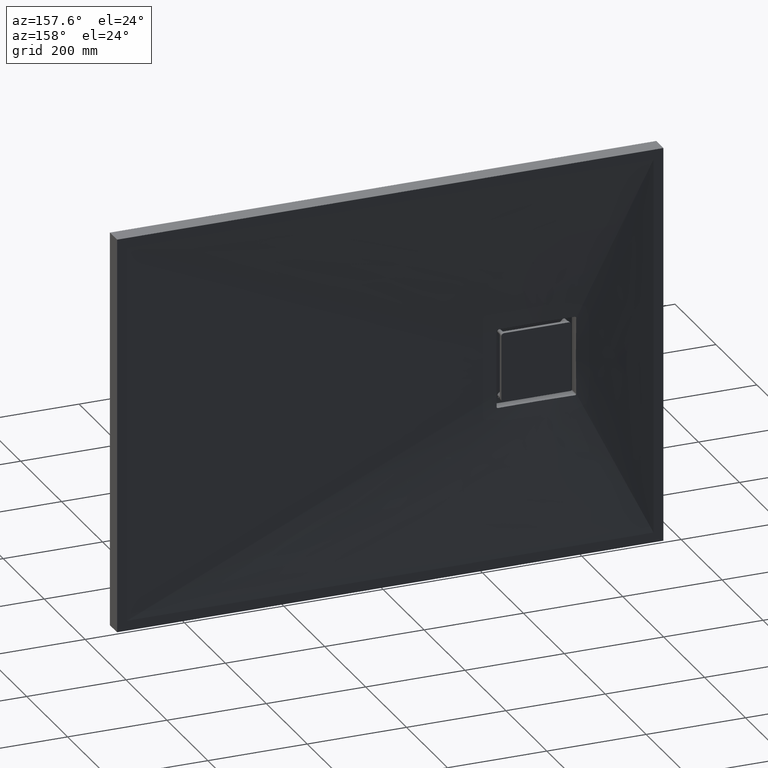
[diagram: clean part render]
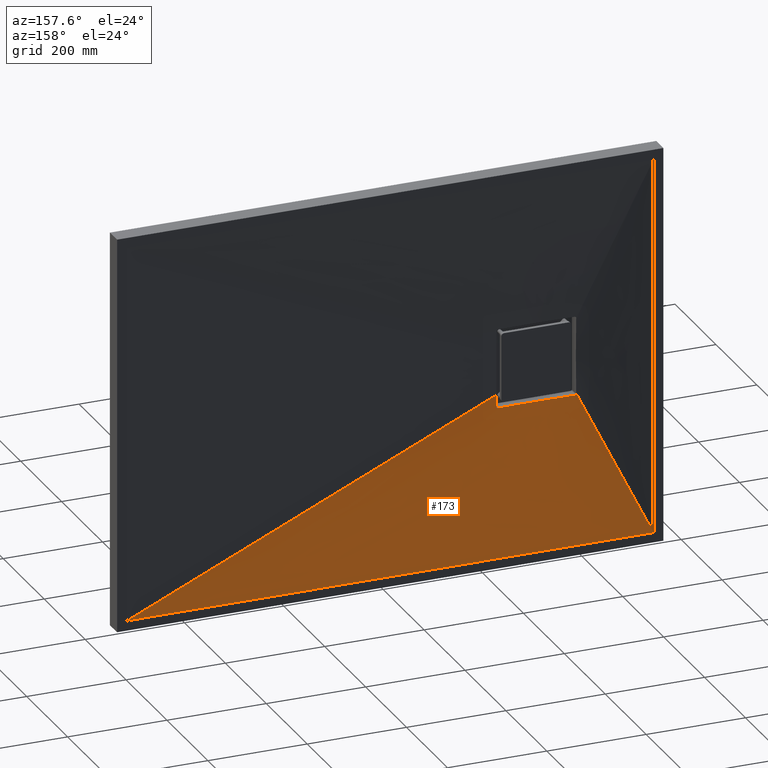
[diagram: same view with one face highlighted and labeled with its STEP entity id]
A machine part, auxiliary view. The second image highlights one B-rep face of the part: STEP entity #173.
In plain terms, the highlighted face is a freeform B-spline surface patch.
Its self-contained STEP definition (entity closure, byte-faithful):
#7 = B_SPLINE_CURVE_WITH_KNOTS ( 'NONE', 3,
 ( #1236, #1111, #2135, #2126, #1371, #1577, #452, #1130, #1120, #2096, #2105, #2115, #3221, #3239, #413, #94 ),
 .UNSPECIFIED., .F., .F.,
 ( 4, 2, 2, 2, 2, 2, 2, 4 ),
 ( 0.0000000000000000000, 0.01937721941836496900, 0.03875443883672993800, 0.05813165825509489900, 0.07750887767345987500, 0.09688609709182484400, 0.1162633165101898000, 0.1550177553469196400 ),
 .UNSPECIFIED. ) ;
#12 = VECTOR ( 'NONE', #677, 1000.000000000000300 ) ;
#33 = LINE ( 'NONE', #701, #12 ) ;
#58 = CARTESIAN_POINT ( 'NONE',  ( -361.7052981467360800, 20.00000000000000400, -50.99577307566186600 ) ) ;
#79 = CARTESIAN_POINT ( 'NONE',  ( -507.9166666666669100, 35.00000000000000000, -379.9999999999998900 ) ) ;
#87 = CARTESIAN_POINT ( 'NONE',  ( -222.5000000000003100, 20.75112594090486300, -79.99999999999988600 ) ) ;
#94 = CARTESIAN_POINT ( 'NONE',  ( -222.5000000000003100, 20.75112594090486300, -79.99999999999988600 ) ) ;
#173 = ADVANCED_FACE ( 'NONE', ( #1300 ), #2274, .F. ) ;
#176 = CARTESIAN_POINT ( 'NONE',  ( -530.0000000000003400, 35.00000000000000000, -379.9999999999998900 ) ) ;
#215 = CARTESIAN_POINT ( 'NONE',  ( -485.8333333333334300, 35.00000000000000000, -379.9999999999998900 ) ) ;
#224 = ORIENTED_EDGE ( 'NONE', *, *, #2667, .T. ) ;
#243 = CARTESIAN_POINT ( 'NONE',  ( -379.8724588645875400, 21.40936809743771400, -78.30514288652749100 ) ) ;
#244 = CARTESIAN_POINT ( 'NONE',  ( -220.6174807482476300, 20.75403846884901400, -79.15308589838852500 ) ) ;
#262 = CARTESIAN_POINT ( 'NONE',  ( -441.6666666666666300, 35.00000000000000000, -379.9999999999998900 ) ) ;
#290 = CARTESIAN_POINT ( 'NONE',  ( -344.0301745403897900, 20.00000000000000400, -66.86535820804444100 ) ) ;
#339 = CARTESIAN_POINT ( 'NONE',  ( -220.8333333333327500, 35.00000000000000000, -379.9999999999998900 ) ) ;
#340 = CARTESIAN_POINT ( 'NONE',  ( -341.3532267441534600, 20.00000000000000400, -68.55818577849230200 ) ) ;
#345 = CARTESIAN_POINT ( 'NONE',  ( -287.0833333333329200, 35.00000000000000000, -379.9999999999998900 ) ) ;
#349 = CARTESIAN_POINT ( 'NONE',  ( 529.9999999999996600, 35.00000000000000000, -379.9999999999998900 ) ) ;
#357 = VECTOR ( 'NONE', #1519, 1000.000000000000000 ) ;
#359 = CARTESIAN_POINT ( 'NONE',  ( -332.7727712270692000, 20.00000000000000000, -73.05368764796081400 ) ) ;
#366 = CARTESIAN_POINT ( 'NONE',  ( -335.7245187442330800, 20.00000000000000400, -71.65244559597792300 ) ) ;
#389 = ORIENTED_EDGE ( 'NONE', *, *, #1623, .T. ) ;
#393 = LINE ( 'NONE', #2049, #357 ) ;
#413 = CARTESIAN_POINT ( 'NONE',  ( -235.4175237471420100, 20.59207229256688300, -79.99999999999984400 ) ) ;
#429 = CARTESIAN_POINT ( 'NONE',  ( -326.6430799332999300, 20.00000000000000000, -75.50524554317682700 ) ) ;
#432 = CARTESIAN_POINT ( 'NONE',  ( -176.6666666666659800, 35.00000000000000000, -379.9999999999998900 ) ) ;
#452 = CARTESIAN_POINT ( 'NONE',  ( -325.8410786932366800, 20.23737435204045800, -79.99999999999982900 ) ) ;
#546 = CARTESIAN_POINT ( 'NONE',  ( 507.9166666666664600, 35.00000000000000000, -379.9999999999998900 ) ) ;
#564 = CARTESIAN_POINT ( 'NONE',  ( -220.0000000000003100, 20.72325411655747400, -77.49999999999988600 ) ) ;
#571 = CARTESIAN_POINT ( 'NONE',  ( -380.0000000000002300, 21.37647287985030100, -77.29797643291834700 ) ) ;
#592 = CARTESIAN_POINT ( 'NONE',  ( -220.0000000000002800, 20.53760863952169300, -69.38250910483107200 ) ) ;
#614 = CARTESIAN_POINT ( 'NONE',  ( -220.0000000000002600, 20.39814914347487800, -61.26420382882009400 ) ) ;
#621 = CARTESIAN_POINT ( 'NONE',  ( -220.0000000000002800, 20.29381605708499200, -53.14527918142273000 ) ) ;
#672 = CARTESIAN_POINT ( 'NONE',  ( -380.0000000000003400, 21.38356546132506300, -77.49999999999985800 ) ) ;
#677 = DIRECTION ( 'NONE',  ( -0.9165784987461060900, -0.01797249600090817700, 0.3994506790879588400 ) ) ;
#682 = CARTESIAN_POINT ( 'NONE',  ( -242.9166666666661200, 35.00000000000000000, -379.9999999999998900 ) ) ;
#688 = CARTESIAN_POINT ( 'NONE',  ( -220.0000000000003100, 20.72325411655747400, -77.49999999999988600 ) ) ;
#701 = CARTESIAN_POINT ( 'NONE',  ( 147.5078441943495000, 27.50000000000000400, -213.3075109317978800 ) ) ;
#864 = CARTESIAN_POINT ( 'NONE',  ( -220.0000000000003700, 20.73080285528976000, -77.83007439183414500 ) ) ;
#888 = CARTESIAN_POINT ( 'NONE',  ( -380.0000000000003400, 21.36939752737829000, -77.09595226020708500 ) ) ;
#909 = CARTESIAN_POINT ( 'NONE',  ( -380.0000000000003400, 21.36233967929659300, -76.89392747670572700 ) ) ;
#979 = CARTESIAN_POINT ( 'NONE',  ( -375.4166666666665200, 35.00000000000000000, -379.9999999999998900 ) ) ;
#992 = CARTESIAN_POINT ( 'NONE',  ( -234.9843116113006800, 20.00000000000000000, -46.61502186359582100 ) ) ;
#1011 = DIRECTION ( 'NONE',  ( -1.000000000000000000, 0.0000000000000000000, 0.0000000000000000000 ) ) ;
#1060 = CARTESIAN_POINT ( 'NONE',  ( -220.0000000000003100, 20.72325411655747400, -77.49999999999988600 ) ) ;
#1111 = CARTESIAN_POINT ( 'NONE',  ( -371.0421898611198200, 21.29375652970349700, -79.99999999999984400 ) ) ;
#1120 = CARTESIAN_POINT ( 'NONE',  ( -306.4662511269842800, 20.00002788254466100, -79.99999999999982900 ) ) ;
#1128 = ORIENTED_EDGE ( 'NONE', *, *, #2343, .T. ) ;
#1130 = CARTESIAN_POINT ( 'NONE',  ( -312.9250322534639400, 20.04296218426946700, -79.99999999999981500 ) ) ;
#1231 = CARTESIAN_POINT ( 'NONE',  ( -323.4652228249630600, 20.00000000000000000, -76.55537357724708200 ) ) ;
#1236 = CARTESIAN_POINT ( 'NONE',  ( -377.5000000000003400, 21.42276207670963500, -79.99999999999984400 ) ) ;
#1277 = CARTESIAN_POINT ( 'NONE',  ( -242.0775971034681500, 19.99999999999999600, -55.25493583069091800 ) ) ;
#1300 = FACE_OUTER_BOUND ( 'NONE', #1755, .T. ) ;
#1320 = CARTESIAN_POINT ( 'NONE',  ( -221.3919392102884600, 20.75865566493861500, -79.74700406166638800 ) ) ;
#1326 = CARTESIAN_POINT ( 'NONE',  ( -222.1726152103209400, 20.75476268818216900, -79.98381189185489900 ) ) ;
#1364 = CARTESIAN_POINT ( 'NONE',  ( 529.9999999999996600, 35.00000000000000000, -379.9999999999998900 ) ) ;
#1371 = CARTESIAN_POINT ( 'NONE',  ( -345.2128326984927800, 20.69506707752152200, -79.99999999999985800 ) ) ;
#1381 = CARTESIAN_POINT ( 'NONE',  ( -357.9224028965322800, 20.00000000000000000, -55.25493583069087600 ) ) ;
#1392 = VERTEX_POINT ( 'NONE', #3154 ) ;
#1396 = CARTESIAN_POINT ( 'NONE',  ( -221.6945750532305200, 20.75794929630256600, -79.87236519574094000 ) ) ;
#1443 = B_SPLINE_CURVE_WITH_KNOTS ( 'NONE', 3,
 ( #1902, #2782, #1326, #2917, #1396, #1320, #1631, #3061, #1488, #244, #1820, #1740, #2609, #1472, #864, #1060 ),
 .UNSPECIFIED., .F., .F.,
 ( 4, 2, 2, 2, 2, 2, 2, 4 ),
 ( 2.775557561562891000E-017, 0.0004882150574229086700, 0.0009764301148457895900, 0.001464645172268670300, 0.001952860229691551400, 0.002441075287114432500, 0.002929290344537312900, 0.003905720459383107200 ),
 .UNSPECIFIED. ) ;
#1459 = CARTESIAN_POINT ( 'NONE',  ( -379.0276258256327500, 21.43459663696277700, -79.48578795233294200 ) ) ;
#1472 = CARTESIAN_POINT ( 'NONE',  ( -220.0663139919171600, 20.73755099561454800, -78.15808791839684500 ) ) ;
#1488 = CARTESIAN_POINT ( 'NONE',  ( -220.8480807638878500, 20.75666228370318600, -79.38354308632220600 ) ) ;
#1503 = CARTESIAN_POINT ( 'NONE',  ( -380.0000000000003400, 21.38356546132506300, -77.49999999999985800 ) ) ;
#1508 = CARTESIAN_POINT ( 'NONE',  ( -377.5000000000003400, 21.42276207670963500, -79.99999999999984400 ) ) ;
#1519 = DIRECTION ( 'NONE',  ( -0.4431758915503725700, 0.04029254847525917000, -0.8955286928322852000 ) ) ;
#1577 = CARTESIAN_POINT ( 'NONE',  ( -332.2983993930724900, 20.38496388157739900, -79.99999999999984400 ) ) ;
#1621 = CARTESIAN_POINT ( 'NONE',  ( -244.1287047213201000, 19.99999999999999300, -57.33485389314287800 ) ) ;
#1623 = EDGE_CURVE ( 'NONE', #1392, #2489, #3291, .T. ) ;
#1626 = CARTESIAN_POINT ( 'NONE',  ( 441.6666666666667400, 35.00000000000000000, -379.9999999999998900 ) ) ;
#1631 = CARTESIAN_POINT ( 'NONE',  ( -221.2483966503827400, 20.75858016801720000, -79.67028879053611900 ) ) ;
#1634 = EDGE_CURVE ( 'NONE', #2527, #1788, #393, .T. ) ;
#1667 = CARTESIAN_POINT ( 'NONE',  ( -220.0000000000002800, 20.29381605708499200, -53.14527918142273000 ) ) ;
#1724 = VERTEX_POINT ( 'NONE', #688 ) ;
#1731 = VERTEX_POINT ( 'NONE', #87 ) ;
#1740 = CARTESIAN_POINT ( 'NONE',  ( -220.3312044035882000, 20.74818118605575300, -78.75431811487023000 ) ) ;
#1755 = EDGE_LOOP ( 'NONE', ( #2381, #2778, #389, #224, #1128, #3037, #3196, #3201 ) ) ;
#1756 = CARTESIAN_POINT ( 'NONE',  ( -355.8712952786802900, 19.99999999999999600, -57.33485389314287800 ) ) ;
#1783 = CARTESIAN_POINT ( 'NONE',  ( -377.8301342129171300, 21.42935705918927500, -79.99999999999984400 ) ) ;
#1788 = VERTEX_POINT ( 'NONE', #176 ) ;
#1820 = CARTESIAN_POINT ( 'NONE',  ( -220.5139939353624100, 20.75234389759600300, -79.02734023175243300 ) ) ;
#1855 = CARTESIAN_POINT ( 'NONE',  ( -379.9204387500195100, 21.40472318606105200, -78.14649871723770500 ) ) ;
#1857 = CARTESIAN_POINT ( 'NONE',  ( -419.5833333333333100, 35.00000000000000000, -379.9999999999998900 ) ) ;
#1902 = CARTESIAN_POINT ( 'NONE',  ( -222.5000000000003100, 20.75112594090486300, -79.99999999999988600 ) ) ;
#1957 = CARTESIAN_POINT ( 'NONE',  ( -351.4492095509627300, 19.99999999999998900, -61.33405207261832700 ) ) ;
#1992 = CARTESIAN_POINT ( 'NONE',  ( -379.4892926342154700, 21.42721325430060400, -79.02294901775103100 ) ) ;
#1998 = EDGE_CURVE ( 'NONE', #2527, #1392, #3094, .T. ) ;
#2025 = EDGE_CURVE ( 'NONE', #2760, #2727, #33, .T. ) ;
#2047 = CARTESIAN_POINT ( 'NONE',  ( -353.3333333333330900, 35.00000000000000000, -379.9999999999998900 ) ) ;
#2049 = CARTESIAN_POINT ( 'NONE',  ( -447.5078441943500700, 27.50000000000000400, -213.3075109317978500 ) ) ;
#2091 = CARTESIAN_POINT ( 'NONE',  ( -379.6704776866662900, 21.42115074523264800, -78.75127355398289800 ) ) ;
#2096 = CARTESIAN_POINT ( 'NONE',  ( -293.5474970259176600, 19.99997214711099500, -79.99999999999985800 ) ) ;
#2105 = CARTESIAN_POINT ( 'NONE',  ( -287.0883985090300100, 20.03802033021465000, -79.99999999999990100 ) ) ;
#2115 = CARTESIAN_POINT ( 'NONE',  ( -274.1704154324708600, 20.14336503299559000, -79.99999999999988600 ) ) ;
#2126 = CARTESIAN_POINT ( 'NONE',  ( -351.6699259256928900, 20.85554157068124300, -79.99999999999987200 ) ) ;
#2132 = B_SPLINE_CURVE_WITH_KNOTS ( 'NONE', 3,
 ( #564, #592, #614, #621 ),
 .UNSPECIFIED., .F., .F.,
 ( 4, 4 ),
 ( 0.0000000000000000000, 0.02435850658800249600 ),
 .UNSPECIFIED. ) ;
#2135 = CARTESIAN_POINT ( 'NONE',  ( -364.5846217159321400, 21.15412957715757600, -79.99999999999988600 ) ) ;
#2140 = CARTESIAN_POINT ( 'NONE',  ( -379.7471602261778700, 21.41758313782828100, -78.60773961280172300 ) ) ;
#2144 = CARTESIAN_POINT ( 'NONE',  ( -380.0000000000004000, 21.38935808779846300, -77.66499592808240500 ) ) ;
#2189 = CARTESIAN_POINT ( 'NONE',  ( -349.0781414820401700, 20.00000000000000700, -63.25320882782255400 ) ) ;
#2274 = B_SPLINE_SURFACE_WITH_KNOTS ( 'NONE', 3, 1, ( 
 ( #3254, #2972 ),
 ( #79, #3210 ),
 ( #215, #58 ),
 ( #262, #1381 ),
 ( #1857, #1756 ),
 ( #979, #1957 ),
 ( #2047, #2189 ),
 ( #3119, #290 ),
 ( #345, #340 ),
 ( #682, #366 ),
 ( #339, #359 ),
 ( #432, #429 ),
 ( #2931, #1231 ),
 ( #2707, #3155 ),
 ( #3128, #3152 ),
 ( #3184, #3036 ),
 ( #3052, #3058 ),
 ( #3051, #2984 ),
 ( #2930, #2865 ),
 ( #2989, #2866 ),
 ( #2964, #2995 ),
 ( #2915, #2918 ),
 ( #2528, #2886 ),
 ( #2895, #2845 ),
 ( #2901, #2765 ),
 ( #2768, #2770 ),
 ( #2774, #2779 ),
 ( #2717, #2817 ),
 ( #2730, #2797 ),
 ( #2834, #1621 ),
 ( #1626, #1277 ),
 ( #2751, #3222 ),
 ( #546, #3199 ),
 ( #349, #992 ) ),
 .UNSPECIFIED., .F., .F., .F.,
 ( 4, 2, 2, 2, 2, 2, 2, 2, 2, 2, 2, 2, 2, 2, 2, 2, 4 ),
 ( 2, 2 ),
 ( 0.0000000000000000000, 0.06250000000000000000, 0.1250000000000000000, 0.1875000000000000000, 0.2500000000000000000, 0.3125000000000000000, 0.3750000000000000000, 0.4375000000000000000, 0.5000000000000000000, 0.5625000000000000000, 0.6250000000000000000, 0.6875000000000000000, 0.7500000000000000000, 0.8125000000000000000, 0.8750000000000000000, 0.9375000000000000000, 1.000000000000000000 ),
 ( 0.0000000000000000000, 1.000000000000000000 ),
 .UNSPECIFIED. ) ;
#2319 = CARTESIAN_POINT ( 'NONE',  ( -379.9838259634009300, 21.39473977470400700, -77.82725054243204000 ) ) ;
#2336 = CARTESIAN_POINT ( 'NONE',  ( -380.0000000000003400, 21.36233967929659300, -76.89392747670572700 ) ) ;
#2343 = EDGE_CURVE ( 'NONE', #1731, #1724, #1443, .T. ) ;
#2381 = ORIENTED_EDGE ( 'NONE', *, *, #1634, .F. ) ;
#2434 = CARTESIAN_POINT ( 'NONE',  ( -378.1582320135040000, 21.43346823880849400, -79.93365743496831000 ) ) ;
#2489 = VERTEX_POINT ( 'NONE', #1508 ) ;
#2524 = CARTESIAN_POINT ( 'NONE',  ( -379.3838116259814800, 21.42970775593958200, -79.15161448724407500 ) ) ;
#2527 = VERTEX_POINT ( 'NONE', #2336 ) ;
#2528 = CARTESIAN_POINT ( 'NONE',  ( 176.6666666666674500, 35.00000000000000700, -379.9999999999998900 ) ) ;
#2609 = CARTESIAN_POINT ( 'NONE',  ( -220.2534994410393900, 20.74573792003661400, -78.60892383063851700 ) ) ;
#2667 = EDGE_CURVE ( 'NONE', #2489, #1731, #7, .T. ) ;
#2696 = VECTOR ( 'NONE', #1011, 1000.000000000000000 ) ;
#2707 = CARTESIAN_POINT ( 'NONE',  ( -110.4166666666658900, 35.00000000000000000, -379.9999999999998900 ) ) ;
#2717 = CARTESIAN_POINT ( 'NONE',  ( 353.3333333333337100, 35.00000000000000000, -379.9999999999998900 ) ) ;
#2727 = VERTEX_POINT ( 'NONE', #1667 ) ;
#2730 = CARTESIAN_POINT ( 'NONE',  ( 375.4166666666670300, 35.00000000000000000, -379.9999999999998900 ) ) ;
#2751 = CARTESIAN_POINT ( 'NONE',  ( 485.8333333333332000, 35.00000000000000000, -379.9999999999998900 ) ) ;
#2760 = VERTEX_POINT ( 'NONE', #1364 ) ;
#2765 = CARTESIAN_POINT ( 'NONE',  ( -264.2754812557676000, 20.00000000000000400, -71.65244559597792300 ) ) ;
#2768 = CARTESIAN_POINT ( 'NONE',  ( 287.0833333333339400, 35.00000000000000000, -379.9999999999998900 ) ) ;
#2770 = CARTESIAN_POINT ( 'NONE',  ( -258.6467732558470500, 20.00000000000000400, -68.55818577849234400 ) ) ;
#2774 = CARTESIAN_POINT ( 'NONE',  ( 309.1666666666672000, 35.00000000000000000, -379.9999999999998900 ) ) ;
#2778 = ORIENTED_EDGE ( 'NONE', *, *, #1998, .T. ) ;
#2779 = CARTESIAN_POINT ( 'NONE',  ( -255.9698254596107700, 20.00000000000000400, -66.86535820804445500 ) ) ;
#2782 = CARTESIAN_POINT ( 'NONE',  ( -222.3349313783309600, 20.75315843312370100, -79.99999999999990100 ) ) ;
#2797 = CARTESIAN_POINT ( 'NONE',  ( -248.5507904490378300, 19.99999999999999300, -61.33405207261834100 ) ) ;
#2817 = CARTESIAN_POINT ( 'NONE',  ( -250.9218585179602900, 20.00000000000000000, -63.25320882782255400 ) ) ;
#2834 = CARTESIAN_POINT ( 'NONE',  ( 419.5833333333335400, 35.00000000000000000, -379.9999999999998900 ) ) ;
#2845 = CARTESIAN_POINT ( 'NONE',  ( -267.2272287729313100, 19.99999999999999300, -73.05368764796082800 ) ) ;
#2851 = CARTESIAN_POINT ( 'NONE',  ( 529.9999999999996600, 35.00000000000000000, -379.9999999999998900 ) ) ;
#2860 = LINE ( 'NONE', #2851, #2696 ) ;
#2865 = CARTESIAN_POINT ( 'NONE',  ( -293.1535670966336500, 20.00000000000000400, -79.77937825629527400 ) ) ;
#2866 = CARTESIAN_POINT ( 'NONE',  ( -286.3910623467487000, 20.00000000000000400, -78.90766537169409400 ) ) ;
#2871 = CARTESIAN_POINT ( 'NONE',  ( -377.5000000000003400, 21.42276207670963500, -79.99999999999984400 ) ) ;
#2886 = CARTESIAN_POINT ( 'NONE',  ( -273.3569200667007000, 20.00000000000000000, -75.50524554317685500 ) ) ;
#2891 = CARTESIAN_POINT ( 'NONE',  ( -378.7545972921183200, 21.43574858587144000, -79.66863553631768000 ) ) ;
#2895 = CARTESIAN_POINT ( 'NONE',  ( 220.8333333333340500, 35.00000000000000700, -379.9999999999998900 ) ) ;
#2899 = EDGE_CURVE ( 'NONE', #1724, #2727, #2132, .T. ) ;
#2901 = CARTESIAN_POINT ( 'NONE',  ( 242.9166666666673700, 35.00000000000000700, -379.9999999999998900 ) ) ;
#2910 = CARTESIAN_POINT ( 'NONE',  ( -378.6091590019671600, 21.43566396244344900, -79.74638727336804300 ) ) ;
#2915 = CARTESIAN_POINT ( 'NONE',  ( 154.5833333333341400, 35.00000000000000700, -379.9999999999998900 ) ) ;
#2916 = CARTESIAN_POINT ( 'NONE',  ( -379.1533690365712300, 21.43338016724769100, -79.38227189469670000 ) ) ;
#2917 = CARTESIAN_POINT ( 'NONE',  ( -221.8532634936153700, 20.75715722423791800, -79.92037893850159900 ) ) ;
#2918 = CARTESIAN_POINT ( 'NONE',  ( -276.5347771750375600, 20.00000000000000000, -76.55537357724706700 ) ) ;
#2930 = CARTESIAN_POINT ( 'NONE',  ( 44.16666666666753800, 35.00000000000000700, -379.9999999999998900 ) ) ;
#2931 = CARTESIAN_POINT ( 'NONE',  ( -154.5833333333326300, 35.00000000000000000, -379.9999999999998900 ) ) ;
#2964 = CARTESIAN_POINT ( 'NONE',  ( 110.4166666666675000, 35.00000000000000700, -379.9999999999998900 ) ) ;
#2972 = CARTESIAN_POINT ( 'NONE',  ( -365.0156883886998600, 20.00000000000000000, -46.61502186359580000 ) ) ;
#2984 = CARTESIAN_POINT ( 'NONE',  ( -296.5767259191548000, 20.00000000000000400, -79.99999999999995700 ) ) ;
#2989 = CARTESIAN_POINT ( 'NONE',  ( 88.33333333333418100, 35.00000000000000700, -379.9999999999998900 ) ) ;
#2995 = CARTESIAN_POINT ( 'NONE',  ( -283.0519275882422200, 20.00000000000000000, -78.25665944379953500 ) ) ;
#3036 = CARTESIAN_POINT ( 'NONE',  ( -306.8464329033668600, 20.00000000000000400, -79.77937825629526000 ) ) ;
#3037 = ORIENTED_EDGE ( 'NONE', *, *, #2899, .T. ) ;
#3051 = CARTESIAN_POINT ( 'NONE',  ( 22.08333333333421700, 35.00000000000000700, -379.9999999999998900 ) ) ;
#3052 = CARTESIAN_POINT ( 'NONE',  ( -22.08333333333244400, 35.00000000000000700, -379.9999999999998900 ) ) ;
#3058 = CARTESIAN_POINT ( 'NONE',  ( -303.4232740808457700, 20.00000000000000400, -79.99999999999997200 ) ) ;
#3061 = CARTESIAN_POINT ( 'NONE',  ( -220.9767219495725800, 20.75759172514652900, -79.48904207099441500 ) ) ;
#3094 = B_SPLINE_CURVE_WITH_KNOTS ( 'NONE', 3,
 ( #909, #888, #571, #672 ),
 .UNSPECIFIED., .F., .F.,
 ( 4, 4 ),
 ( 0.0000000000000000000, 0.0006064440924890213600 ),
 .UNSPECIFIED. ) ;
#3119 = CARTESIAN_POINT ( 'NONE',  ( -309.1666666666662900, 35.00000000000000000, -379.9999999999998900 ) ) ;
#3128 = CARTESIAN_POINT ( 'NONE',  ( -88.33333333333251900, 35.00000000000000000, -379.9999999999998900 ) ) ;
#3152 = CARTESIAN_POINT ( 'NONE',  ( -313.6089376532518100, 20.00000000000000400, -78.90766537169409400 ) ) ;
#3154 = CARTESIAN_POINT ( 'NONE',  ( -380.0000000000003400, 21.38356546132506300, -77.49999999999985800 ) ) ;
#3155 = CARTESIAN_POINT ( 'NONE',  ( -316.9480724117583500, 19.99999999999999300, -78.25665944379952100 ) ) ;
#3158 = EDGE_CURVE ( 'NONE', #2760, #1788, #2860, .T. ) ;
#3184 = CARTESIAN_POINT ( 'NONE',  ( -44.16666666666579000, 35.00000000000000000, -379.9999999999998900 ) ) ;
#3196 = ORIENTED_EDGE ( 'NONE', *, *, #2025, .F. ) ;
#3199 = CARTESIAN_POINT ( 'NONE',  ( -236.5628052236527300, 20.00000000000000000, -48.81660505977107800 ) ) ;
#3201 = ORIENTED_EDGE ( 'NONE', *, *, #3158, .T. ) ;
#3210 = CARTESIAN_POINT ( 'NONE',  ( -363.4371947763478400, 19.99999999999999600, -48.81660505977105700 ) ) ;
#3221 = CARTESIAN_POINT ( 'NONE',  ( -267.7115339721271400, 20.21108804331118200, -79.99999999999990100 ) ) ;
#3222 = CARTESIAN_POINT ( 'NONE',  ( -238.2947018532644800, 20.00000000000000000, -50.99577307566190900 ) ) ;
#3239 = CARTESIAN_POINT ( 'NONE',  ( -248.3349953226845300, 20.42869392631037300, -79.99999999999988600 ) ) ;
#3254 = CARTESIAN_POINT ( 'NONE',  ( -530.0000000000003400, 35.00000000000000000, -379.9999999999998900 ) ) ;
#3291 = B_SPLINE_CURVE_WITH_KNOTS ( 'NONE', 3,
 ( #1503, #2144, #2319, #1855, #243, #2140, #2091, #1992, #2524, #2916, #1459, #2891, #2910, #2434, #1783, #2871 ),
 .UNSPECIFIED., .F., .F.,
 ( 4, 2, 2, 2, 2, 2, 2, 4 ),
 ( 0.0000000000000000000, 0.0004882675893914835500, 0.0009765351787829671100, 0.001464802768174450600, 0.001953070357565934200, 0.002441337946957417900, 0.002929605536348901100, 0.003906140715131868400 ),
 .UNSPECIFIED. ) ;